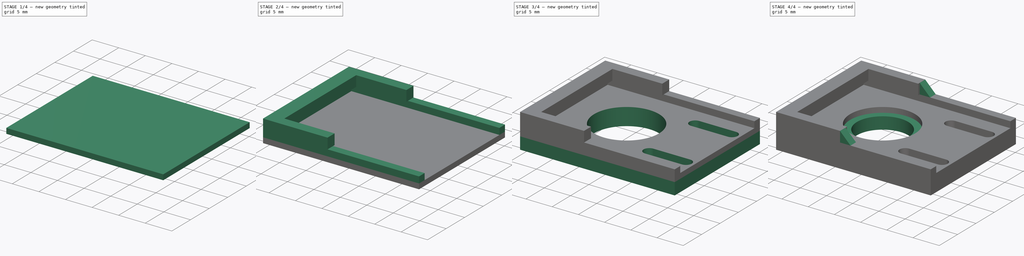
[diagram: build sequence overview — one tinted view per stage of 4, left to right]
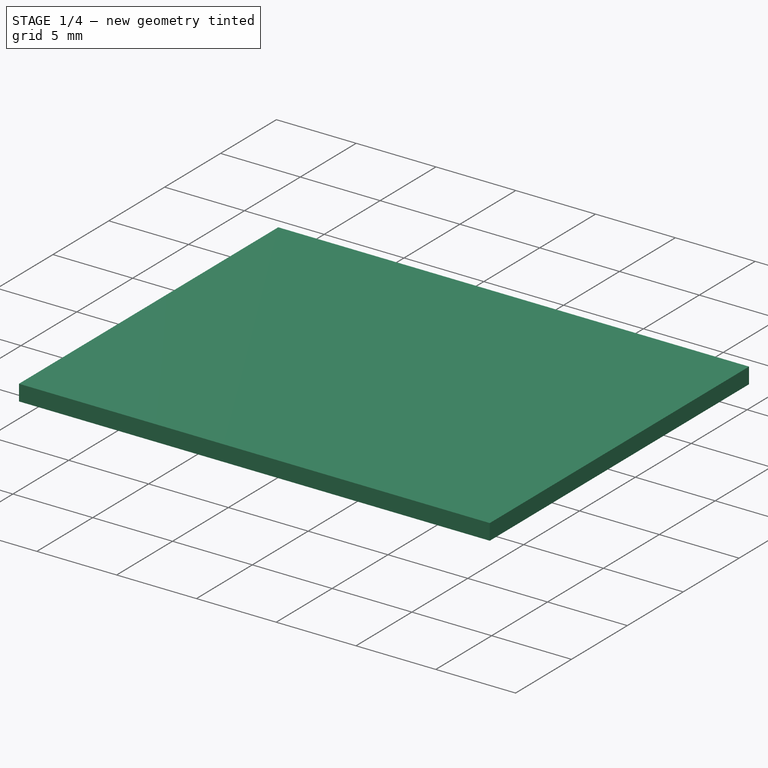
[diagram: stage 1 of 4 — iso view after this stage's code; geometry added in this stage tinted green]
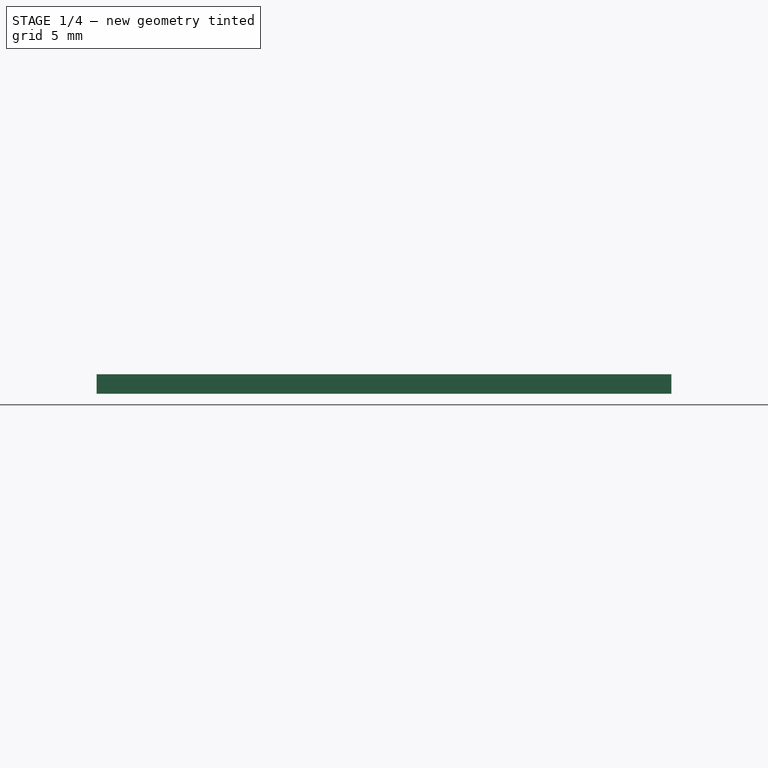
[diagram: stage 1 of 4 — front view after this stage's code; geometry added in this stage tinted green]
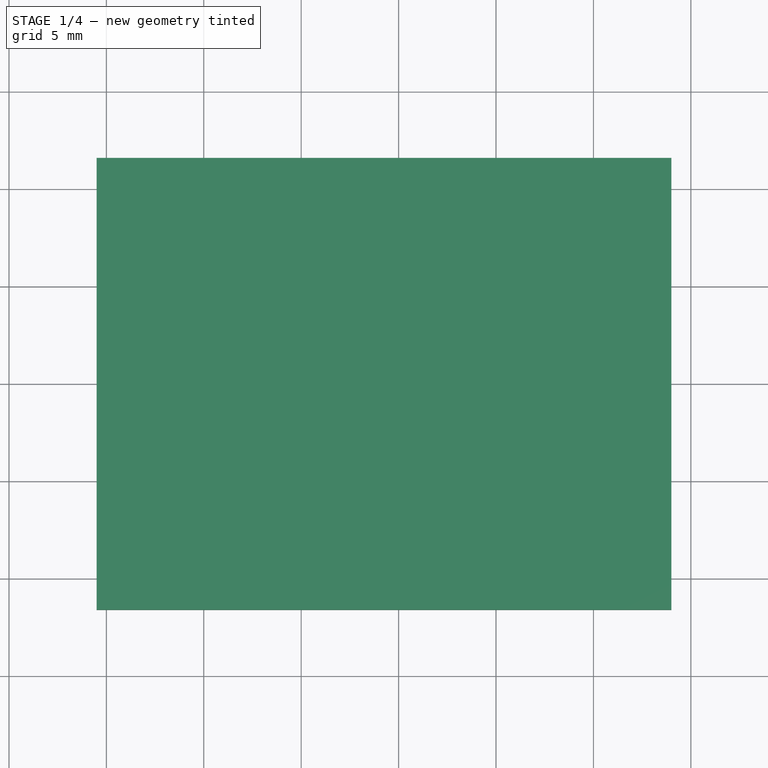
[diagram: stage 1 of 4 — top view after this stage's code; geometry added in this stage tinted green]
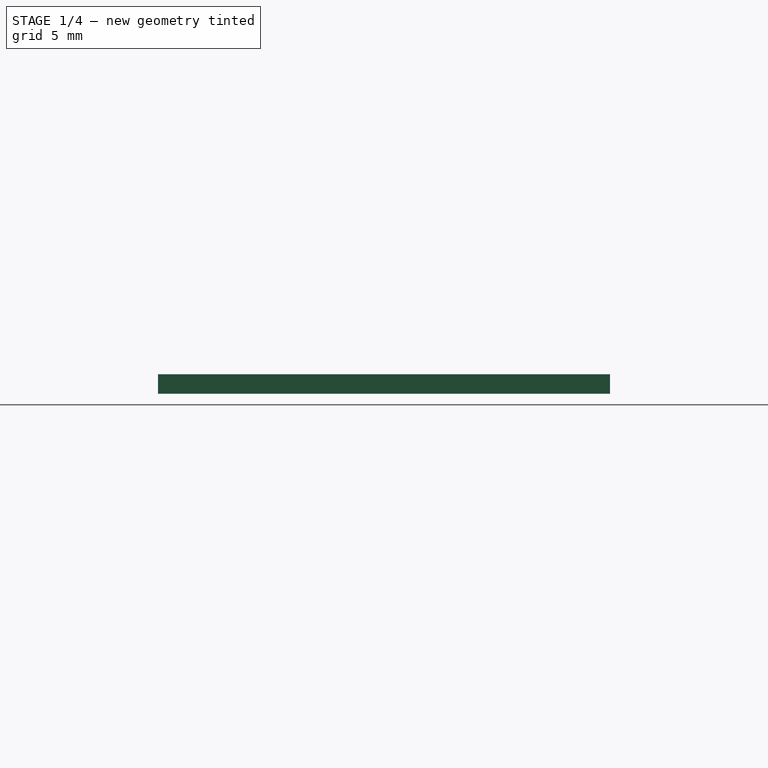
[diagram: stage 1 of 4 — right view after this stage's code; geometry added in this stage tinted green]
FCSTD DOCUMENT  (FreeCAD 0.20R29603 (Git))
Label: case-lamp-base
License: All rights reserved
LicenseURL: http://en.wikipedia.org/wiki/All_rights_reserved
objects: Sketcher::SketchObject×6, PartDesign::Pad×6, PartDesign::Pocket×2, PartDesign::Chamfer×1, PartDesign::Body×1
note: 25 computed .brp shape members not serialized (recipe doc carries the construction recipe); baked Part::Feature solids carry a one-line shape summary decoded from their .brp

FEATURE [Sketcher::SketchObject] Sketch
  FullyConstrained = true
  MapMode = 5
  Support = -> [XY_Plane]
  sketch-geometry (10):
    g0: LineSegment StartX=-14 StartY=10.1 StartZ=0 EndX=14 EndY=10.1 EndZ=0
    g1: LineSegment StartX=14 StartY=10.1 StartZ=0 EndX=14 EndY=-10.1 EndZ=0
    g2: LineSegment StartX=14 StartY=-10.1 StartZ=0 EndX=-14 EndY=-10.1 EndZ=0
    g3: LineSegment StartX=-14 StartY=-10.1 StartZ=0 EndX=-14 EndY=10.1 EndZ=0
    g4: Circle CenterX=-3.5 CenterY=0 CenterZ=0 NormalX=0 NormalY=0 NormalZ=1 AngleXU=0 Radius=9.5
    g5: LineSegment StartX=-3.5 StartY=9.5 StartZ=0 EndX=7.5 EndY=9.5 EndZ=0
    g6: Circle CenterX=7.5 CenterY=6 CenterZ=0 NormalX=0 NormalY=0 NormalZ=1 AngleXU=0 Radius=3.5
    g7: LineSegment StartX=7.5 StartY=6 StartZ=0 EndX=-3.5 EndY=6 EndZ=0
    g8: GeomPoint X=-13 Y=0 Z=0
    g9: GeomPoint X=-14 Y=0 Z=0
  constraints (28):
    c: Coincident(g0,g1)
    c: Coincident(g1,g2)
    c: Coincident(g2,g3)
    c: Coincident(g3,g0)
    c: Horizontal(g2)
    c: Vertical(g1)
    c: Symmetric(g0,g0,g-2)
    c: Symmetric(g0,g2,g-1)
    c: DistanceY(g3,g3) = 20.2
    c: DistanceX(g2,g2) = 28
    c: PointOnObject(g4,g-1)
    c: Diameter(g4) = 19
    c: Horizontal(g5)
    c: Tangent(g5,g4) = 1.5708
    c: Tangent(g6,g5)
    c: Vertical(g6,g5)
    c: Coincident(g7,g6)
    c: Horizontal(g7)
    c: Vertical(g7,g4)
    c: DistanceX(g7,g7) = 11
    c: Diameter(g6) = 7
    c: PointOnObject(g8,g-1)
    c: PointOnObject(g8,g4)
    c: PointOnObject(g9,g3)
    c: PointOnObject(g9,g-1)
    c: DistanceX(g9,g8) = 1
    c: DistanceX(g0,g5) = 10.5
    c: DistanceY(g5,g0) = 0.6
FEATURE [PartDesign::Pad] Pad
  Direction = (0,0,1)
  Length = 1
  Length2 = 10
  Profile = -> Sketch
  ReferenceAxis = -> Sketch [N_Axis]
  Type = 0
FEATURE [Sketcher::SketchObject] Sketch001
  ExternalGeometry = -> [Pad]
  FullyConstrained = true
  MapMode = 5
  Placement = pos=(0,0,1) rot=(0,0,1;0rad)
  Support = -> [Pad]
  sketch-geometry (12):
    g0: Circle CenterX=-3.5 CenterY=0 CenterZ=0 NormalX=0 NormalY=0 NormalZ=1 AngleXU=0 Radius=9.5
    g1: Circle CenterX=7.5 CenterY=6 CenterZ=0 NormalX=0 NormalY=0 NormalZ=1 AngleXU=0 Radius=3.5
    g2: LineSegment StartX=-3.5 StartY=9.5 StartZ=0 EndX=7.5 EndY=9.5 EndZ=0
    g3: GeomPoint X=-13 Y=0 Z=0
    g4: LineSegment StartX=14 StartY=10.1 StartZ=0 EndX=14 EndY=11.6 EndZ=0
    g5: LineSegment StartX=14 StartY=11.6 StartZ=0 EndX=-15.5 EndY=11.6 EndZ=0
    g6: LineSegment StartX=-15.5 StartY=11.6 StartZ=0 EndX=-15.5 EndY=-11.6 EndZ=0
    g7: LineSegment StartX=-15.5 StartY=-11.6 StartZ=0 EndX=14 EndY=-11.6 EndZ=0
    g8: LineSegment StartX=14 StartY=-11.6 StartZ=0 EndX=14 EndY=-10.1 EndZ=0
    g9: LineSegment StartX=14 StartY=-10.1 StartZ=0 EndX=-14 EndY=-10.1 EndZ=0
    g10: LineSegment StartX=-14 StartY=-10.1 StartZ=0 EndX=-14 EndY=10.1 EndZ=0
    g11: LineSegment StartX=-14 StartY=10.1 StartZ=0 EndX=14 EndY=10.1 EndZ=0
  constraints (37):
    c: PointOnObject(g0,g-1)
    c: Horizontal(g2)
    c: Tangent(g2,g1)
    c: Tangent(g2,g0)
    c: Vertical(g0,g2)
    c: Vertical(g1,g2)
    c: DistanceX(g2,g2) = 11
    c: Diameter(g1) = 7
    c: Diameter(g0) = 19
    c: PointOnObject(g3,g0)
    c: PointOnObject(g3,g-1)
    c: DistanceX(g-3,g3) = 1
    c: DistanceY(g2,g-3) = 0.6
    c: Vertical(g4)
    c: Coincident(g4,g5)
    c: Horizontal(g5)
    c: Coincident(g5,g6)
    c: Vertical(g6)
    c: Coincident(g6,g7)
    c: Horizontal(g7)
    c: Coincident(g7,g8)
    c: Vertical(g8)
    c: Coincident(g8,g9)
    c: Horizontal(g9)
    c: Coincident(g9,g10)
    c: Vertical(g10)
    c: Coincident(g10,g11)
    c: Coincident(g11,g4)
    c: Horizontal(g11)
    c: PointOnObject(g-3,g9)
    c: PointOnObject(g-3,g10)
    c: PointOnObject(g-3,g11)
    c: Equal(g7,g5)
    c: Equal(g4,g8)
    c: PointOnObject(g-4,g8)
    c: DistanceY(g4,g4) = 1.5
    c: DistanceX(g5,g10) = 1.5
FEATURE [PartDesign::Pad] Pad001
  BaseFeature = -> Pad
  Direction = (0,0,1)
  Length = 10
  Length2 = 10
  Profile = -> Sketch001
  ReferenceAxis = -> Sketch001 [N_Axis]
  Type = 3
  UpToFace = -> Pad [Face5]
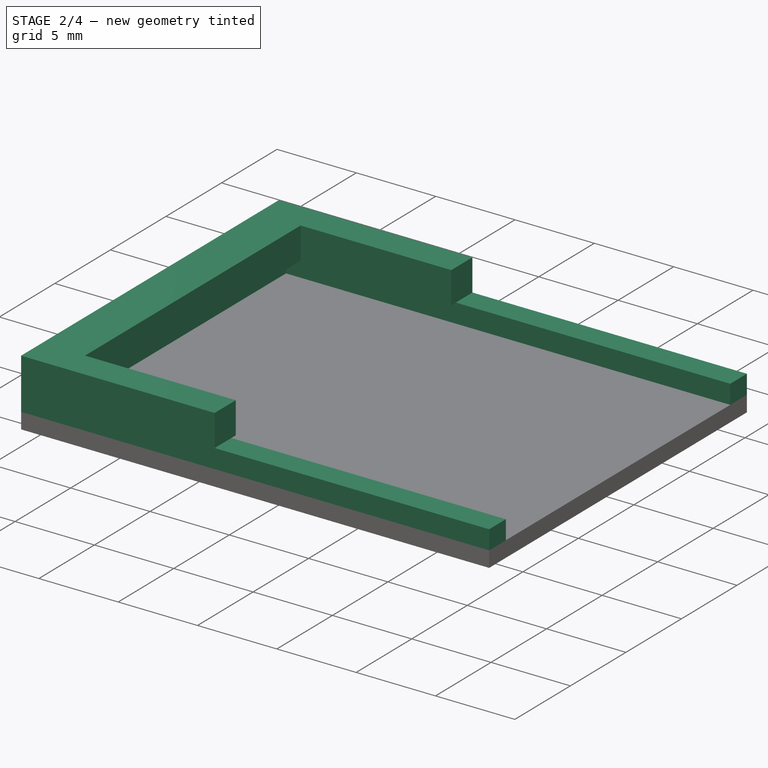
[diagram: stage 2 of 4 — iso view after this stage's code; geometry added in this stage tinted green]
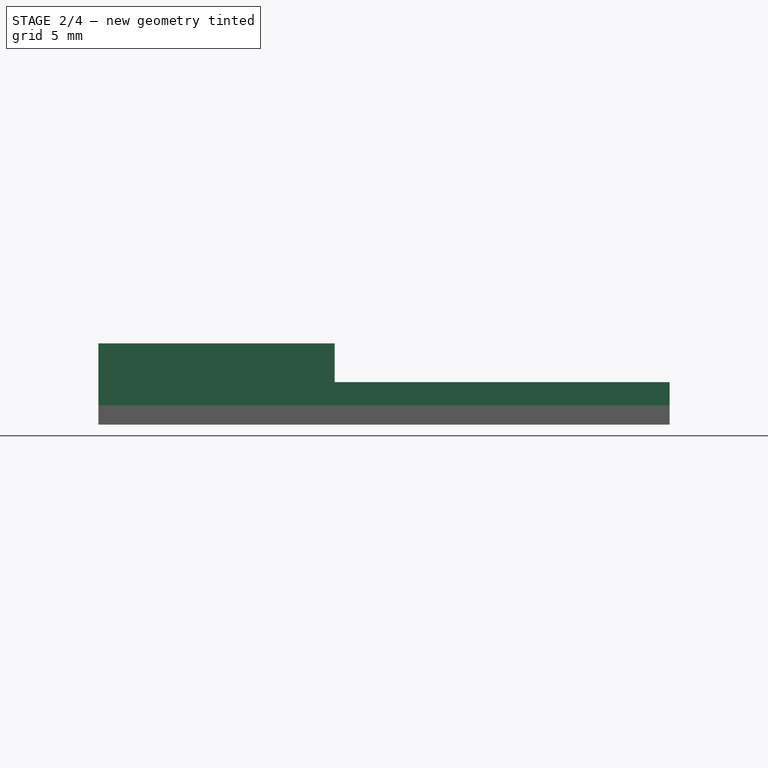
[diagram: stage 2 of 4 — front view after this stage's code; geometry added in this stage tinted green]
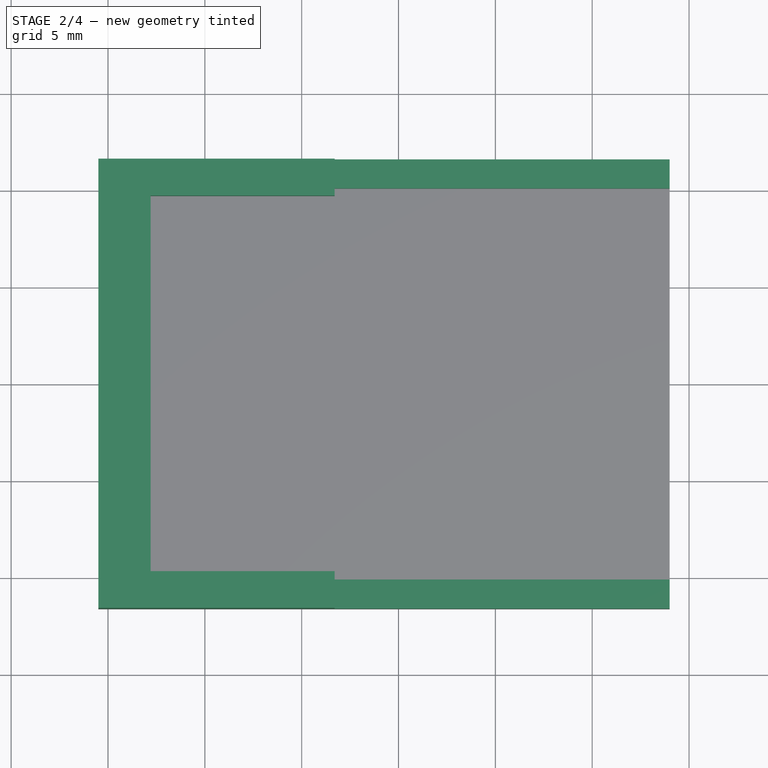
[diagram: stage 2 of 4 — top view after this stage's code; geometry added in this stage tinted green]
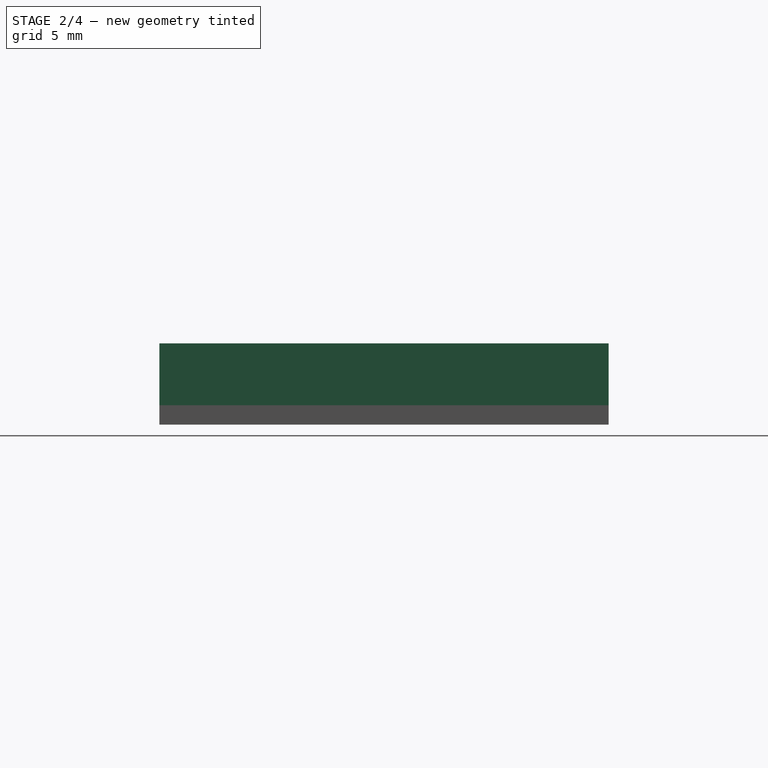
[diagram: stage 2 of 4 — right view after this stage's code; geometry added in this stage tinted green]
FEATURE [PartDesign::Pad] Pad002
  BaseFeature = -> Pad001
  Direction = (0,0,1)
  Length = 1.2
  Length2 = 10
  Profile = -> Pad001 [Face6]
  Type = 0
FEATURE [Sketcher::SketchObject] Sketch002
  ExternalGeometry = -> [Pad002]
  FullyConstrained = true
  MapMode = 5
  Placement = pos=(0,0,2.2) rot=(0,0,1;0rad)
  Support = -> [Pad002]
  sketch-geometry (11):
    g0: Circle CenterX=-3.3 CenterY=0 CenterZ=0 NormalX=0 NormalY=0 NormalZ=1 AngleXU=0 Radius=9.5
    g1: Circle CenterX=7.7 CenterY=6 CenterZ=0 NormalX=0 NormalY=0 NormalZ=1 AngleXU=0 Radius=3.5
    g2: LineSegment StartX=-3.3 StartY=9.5 StartZ=0 EndX=7.7 EndY=9.5 EndZ=0
    g3: LineSegment StartX=-3.3 StartY=-9.7 StartZ=0 EndX=-12.8 EndY=-9.7 EndZ=0
    g4: LineSegment StartX=-12.8 StartY=-9.7 StartZ=0 EndX=-12.8 EndY=9.7 EndZ=0
    g5: LineSegment StartX=-12.8 StartY=9.7 StartZ=0 EndX=-3.3 EndY=9.7 EndZ=0
    g6: LineSegment StartX=-3.3 StartY=9.7 StartZ=0 EndX=-3.3 EndY=11.6 EndZ=0
    g7: LineSegment StartX=-3.3 StartY=11.6 StartZ=0 EndX=-15.5 EndY=11.6 EndZ=0
    g8: LineSegment StartX=-15.5 StartY=11.6 StartZ=0 EndX=-15.5 EndY=-11.6 EndZ=0
    g9: LineSegment StartX=-15.5 StartY=-11.6 StartZ=0 EndX=-3.3 EndY=-11.6 EndZ=0
    g10: LineSegment StartX=-3.3 StartY=-11.6 StartZ=0 EndX=-3.3 EndY=-9.7 EndZ=0
  constraints (34):
    c: PointOnObject(g0,g-1)
    c: Horizontal(g2)
    c: Vertical(g2,g0)
    c: Vertical(g1,g2)
    c: Tangent(g2,g0)
    c: Tangent(g1,g2)
    c: Diameter(g1) = 7
    c: DistanceX(g2,g2) = 11
    c: Diameter(g0) = 19
    c: Horizontal(g3)
    c: Coincident(g3,g4)
    c: Vertical(g4)
    c: Coincident(g4,g5)
    c: Horizontal(g5)
    c: Coincident(g5,g6)
    c: Vertical(g6)
    c: Coincident(g6,g7)
    c: Horizontal(g7)
    c: Coincident(g7,g8)
    c: Vertical(g8)
    c: Coincident(g8,g9)
    c: Horizontal(g9)
    c: Coincident(g9,g10)
    c: Coincident(g10,g3)
    c: Vertical(g10)
    c: Equal(g10,g6)
    c: Equal(g7,g9)
    c: Vertical(g2,g5)
    c: Tangent(g4,g0)
    c: DistanceY(g2,g5) = 0.2
    c: DistanceX(g-3,g4) = 1.2
    c: PointOnObject(g-4,g8)
    c: PointOnObject(g-4,g7)
    c: PointOnObject(g-4,g9)
FEATURE [PartDesign::Pad] Pad003
  BaseFeature = -> Pad002
  Direction = (0,0,1)
  Length = 2
  Length2 = 10
  Profile = -> Sketch002
  ReferenceAxis = -> Sketch002 [N_Axis]
  Type = 0
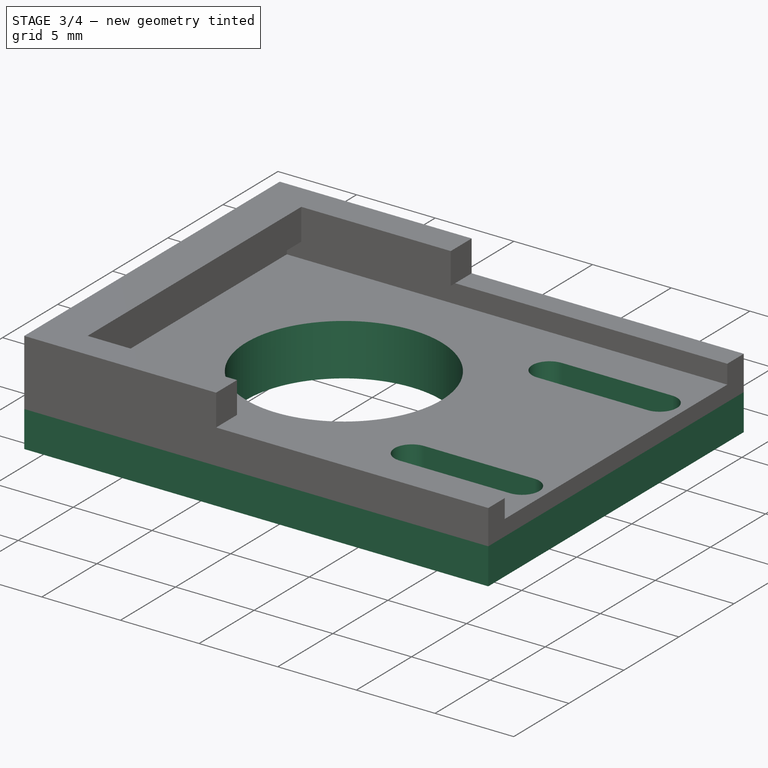
[diagram: stage 3 of 4 — iso view after this stage's code; geometry added in this stage tinted green]
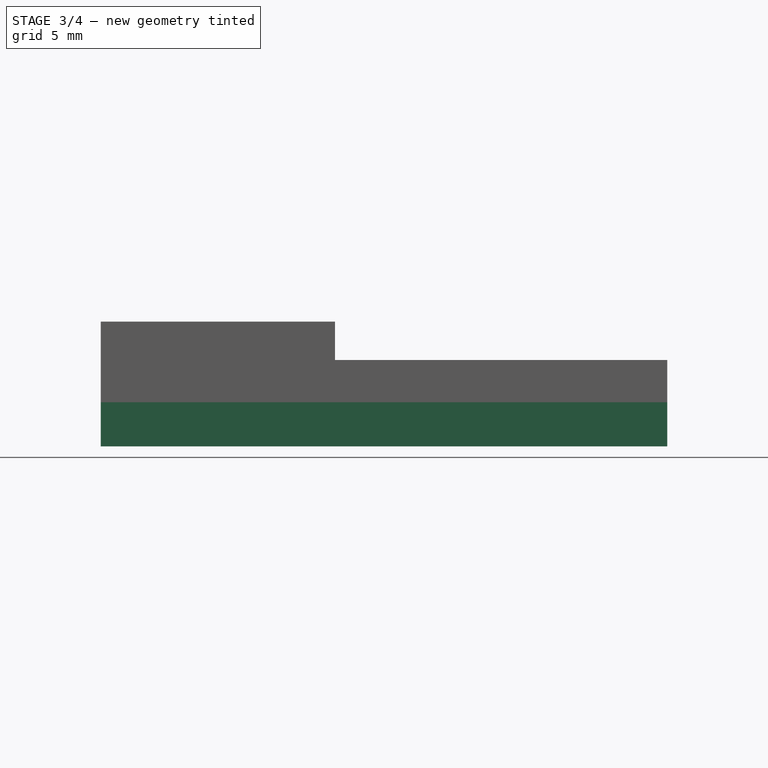
[diagram: stage 3 of 4 — front view after this stage's code; geometry added in this stage tinted green]
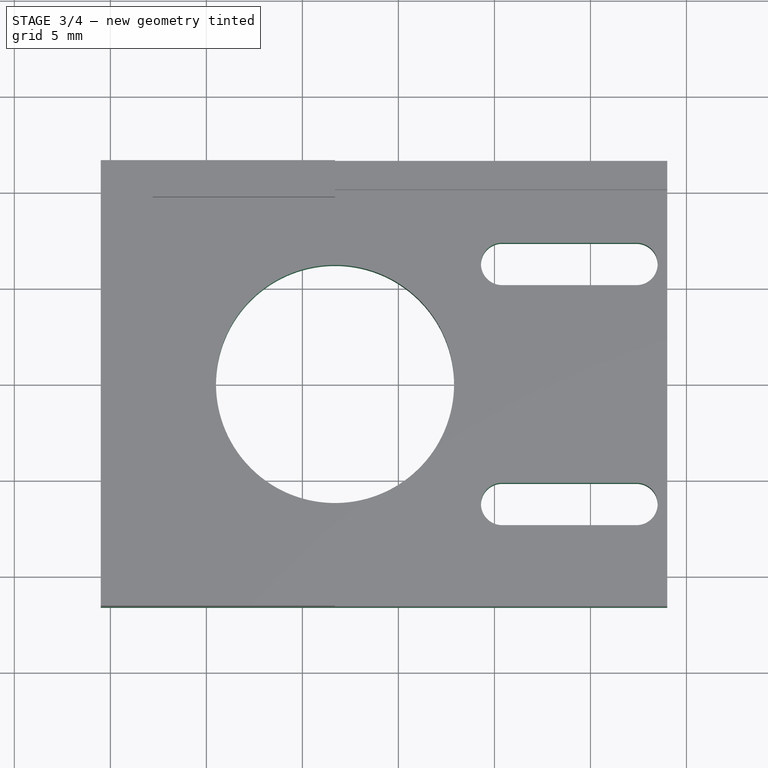
[diagram: stage 3 of 4 — top view after this stage's code; geometry added in this stage tinted green]
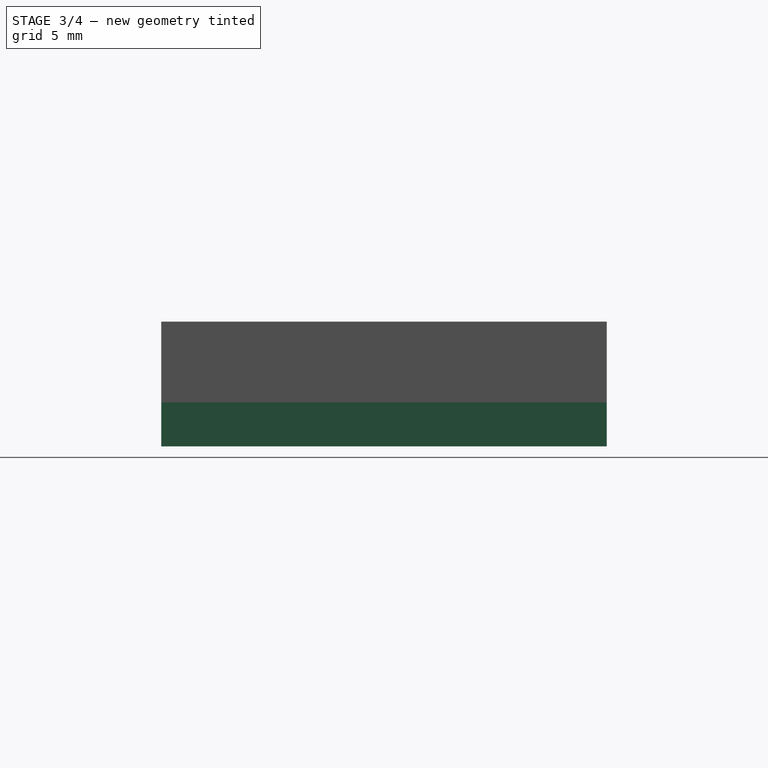
[diagram: stage 3 of 4 — right view after this stage's code; geometry added in this stage tinted green]
FEATURE [Sketcher::SketchObject] Sketch003
  ExternalGeometry = -> [Pad003]
  FullyConstrained = true
  MapMode = 5
  Placement = pos=(0,0,1) rot=(0,0,1;0rad)
  Support = -> [Pad003]
  sketch-geometry (12):
    g0: Circle CenterX=12.4 CenterY=6.25 CenterZ=0 NormalX=0 NormalY=0 NormalZ=1 AngleXU=0 Radius=1.1
    g1: Circle CenterX=12.4 CenterY=-6.25 CenterZ=0 NormalX=0 NormalY=0 NormalZ=1 AngleXU=0 Radius=1.1
    g2: LineSegment StartX=12.4 StartY=-6.25 StartZ=0 EndX=12.4 EndY=6.25 EndZ=0
    g3: GeomPoint X=13.5 Y=6.25 Z=0
    g4: ArcOfCircle CenterX=12.4 CenterY=6.25 CenterZ=0 NormalX=0 NormalY=0 NormalZ=1 AngleXU=0 Radius=1.1 StartAngle=4.71239 EndAngle=7.85398
    g5: ArcOfCircle CenterX=5.4 CenterY=6.25 CenterZ=0 NormalX=0 NormalY=0 NormalZ=1 AngleXU=0 Radius=1.1 StartAngle=1.5708 EndAngle=4.71239
    g6: LineSegment StartX=12.4 StartY=7.35 StartZ=0 EndX=5.4 EndY=7.35 EndZ=0
    g7: LineSegment StartX=5.4 StartY=5.15 StartZ=0 EndX=12.4 EndY=5.15 EndZ=0
    g8: ArcOfCircle CenterX=12.4 CenterY=-6.25 CenterZ=0 NormalX=0 NormalY=0 NormalZ=1 AngleXU=0 Radius=1.1 StartAngle=4.71239 EndAngle=7.85398
    g9: ArcOfCircle CenterX=5.4 CenterY=-6.25 CenterZ=0 NormalX=0 NormalY=0 NormalZ=1 AngleXU=0 Radius=1.1 StartAngle=1.5708 EndAngle=4.71239
    g10: LineSegment StartX=12.4 StartY=-5.15 StartZ=0 EndX=5.4 EndY=-5.15 EndZ=0
    g11: LineSegment StartX=5.4 StartY=-7.35 StartZ=0 EndX=12.4 EndY=-7.35 EndZ=0
  constraints (27):
    c: Coincident(g2,g0)
    c: Coincident(g2,g1)
    c: Symmetric(g0,g1,g-1)
    c: Diameter(g0) = 2.2
    c: Equal(g1,g0)
    c: DistanceY(g2,g2) = 12.5
    c: PointOnObject(g3,g0)
    c: Horizontal(g3,g0)
    c: DistanceX(g3,g-3) = 0.5
    c: Tangent(g4,g6) = -1.5708
    c: Tangent(g6,g5) = -1.5708
    c: Tangent(g5,g7) = -1.5708
    c: Tangent(g7,g4) = -1.5708
    c: Equal(g4,g5)
    c: Coincident(g4,g0)
    c: Tangent(g8,g10) = -1.5708
    c: Tangent(g10,g9) = -1.5708
    c: Tangent(g9,g11) = -1.5708
    c: Tangent(g11,g8) = -1.5708
    c: Equal(g8,g9)
    c: Coincident(g8,g1)
    c: Equal(g8,g1)
    c: Equal(g1,g4)
    c: Horizontal(g7)
    c: Horizontal(g11)
    c: Vertical(g9,g5)
    c: DistanceX(g9,g8) = 7
FEATURE [PartDesign::Pocket] Pocket
  BaseFeature = -> Pad003
  Direction = (0,0,-1)
  Length = 5
  Length2 = 5
  Profile = -> Sketch003
  ReferenceAxis = -> Sketch003 [N_Axis]
  Type = 1
FEATURE [Sketcher::SketchObject] Sketch004
  ExternalGeometry = -> [Pocket]
  FullyConstrained = true
  MapMode = 5
  Placement = pos=(0,0,1) rot=(0,0,1;0rad)
  Support = -> [Pocket]
  sketch-geometry (2):
    g0: Circle CenterX=-3.3 CenterY=0 CenterZ=0 NormalX=0 NormalY=0 NormalZ=1 AngleXU=0 Radius=6.2
    g1: Circle CenterX=-3.3 CenterY=0 CenterZ=0 NormalX=0 NormalY=0 NormalZ=1 AngleXU=0 Radius=9.5
  constraints (5):
    c: PointOnObject(g0,g-1)
    c: Coincident(g1,g0)
    c: Diameter(g1) = 19
    c: Tangent(g1,g-3)
    c: Diameter(g0) = 12.4
FEATURE [PartDesign::Pocket] Pocket001
  BaseFeature = -> Pocket
  Direction = (0,0,-1)
  Length = 1
  Length2 = 5
  Profile = -> Sketch004
  ReferenceAxis = -> Sketch004 [N_Axis]
  Type = 0
FEATURE [PartDesign::Pad] Pad004
  BaseFeature = -> Pocket001
  Direction = (0,0,-1)
  Length = 2.3
  Length2 = 10
  Profile = -> Pocket001 [Face4,Face8]
  Type = 0
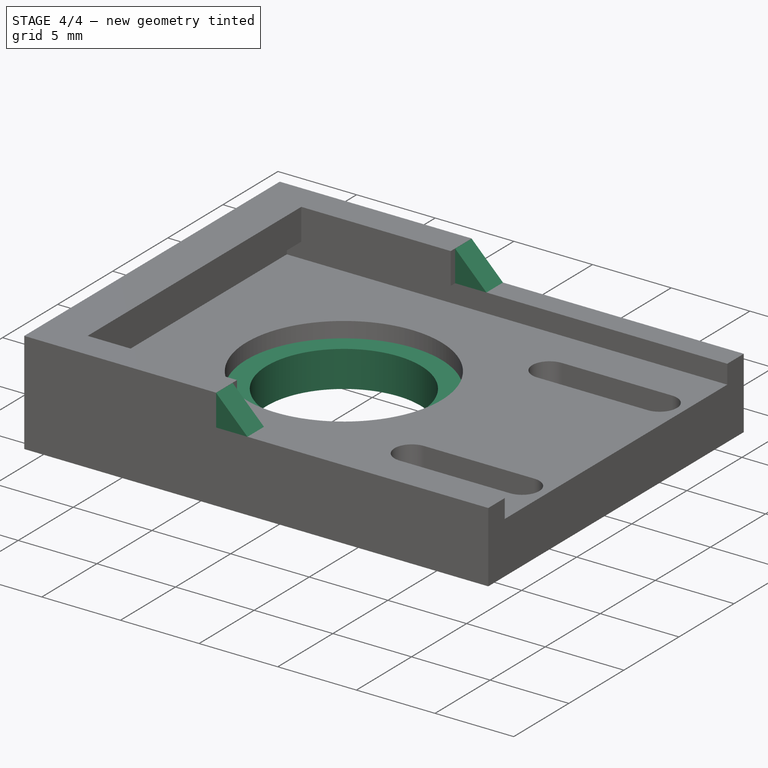
[diagram: stage 4 of 4 — iso view after this stage's code; geometry added in this stage tinted green]
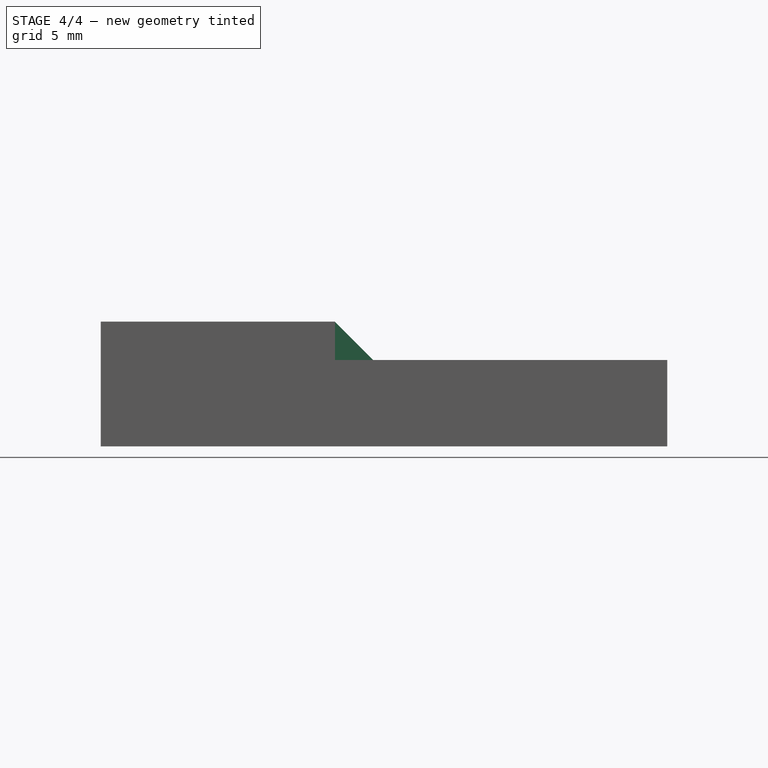
[diagram: stage 4 of 4 — front view after this stage's code; geometry added in this stage tinted green]
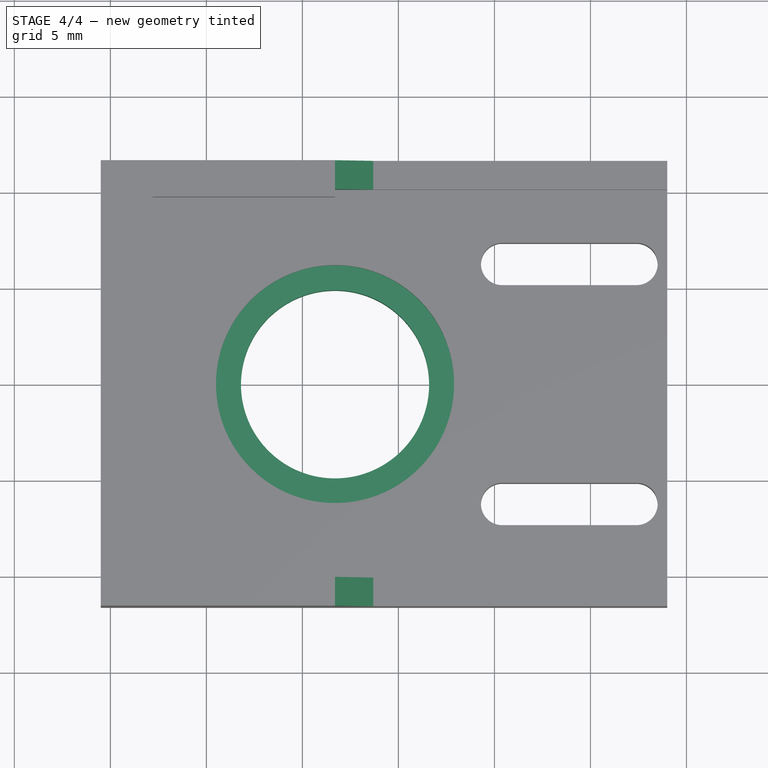
[diagram: stage 4 of 4 — top view after this stage's code; geometry added in this stage tinted green]
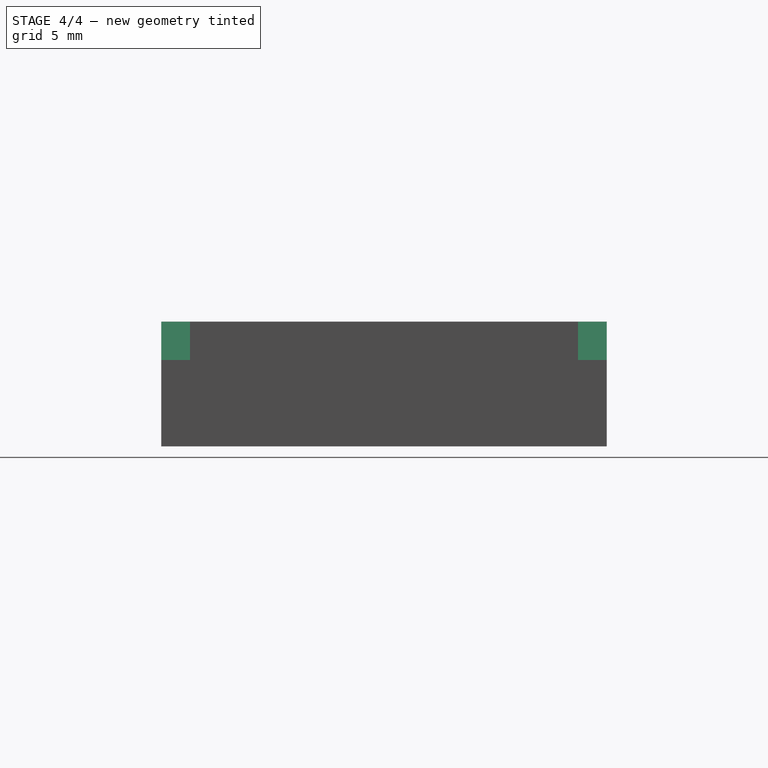
[diagram: stage 4 of 4 — right view after this stage's code; geometry added in this stage tinted green]
FEATURE [Sketcher::SketchObject] Sketch005
  ExternalGeometry = -> [Pad004]
  FullyConstrained = true
  MapMode = 5
  Placement = pos=(0,0,-2.3) rot=(1,0,0;3.14159rad)
  Support = -> [Pad004]
  sketch-geometry (2):
    g0: Circle CenterX=-3.3 CenterY=0 CenterZ=0 NormalX=0 NormalY=0 NormalZ=1 AngleXU=0 Radius=4.9
    g1: Circle CenterX=-3.3 CenterY=0 CenterZ=0 NormalX=0 NormalY=0 NormalZ=1 AngleXU=0 Radius=6.2
  constraints (4):
    c: Coincident(g0,g-3)
    c: Diameter(g0) = 9.8
    c: Coincident(g1,g0)
    c: Equal(g1,g-3)
FEATURE [PartDesign::Pad] Pad005
  BaseFeature = -> Pad004
  Direction = (0,0,-1)
  Length = 2.3
  Length2 = 10
  Profile = -> Sketch005
  ReferenceAxis = -> Sketch005 [N_Axis]
  Reversed = true
  Type = 0
FEATURE [PartDesign::Chamfer] Chamfer
  Angle = 45
  Base = -> Pad005 [Edge92,Edge82]
  BaseFeature = -> Pad005
  ChamferType = 0
  FlipDirection = false
  Size = 1.99
  Size2 = 1
  SupportTransform = false
  UseAllEdges = false
FEATURE [PartDesign::Body] Body
  Group = -> [Sketch,Pad,Sketch001,Pad001,Pad002,Sketch002,Pad003,Sketch003,Pocket,Sketch004,Pocket001,Pad004,Sketch005,Pad005,Chamfer]
  Origin = -> Origin
  Tip = -> Chamfer
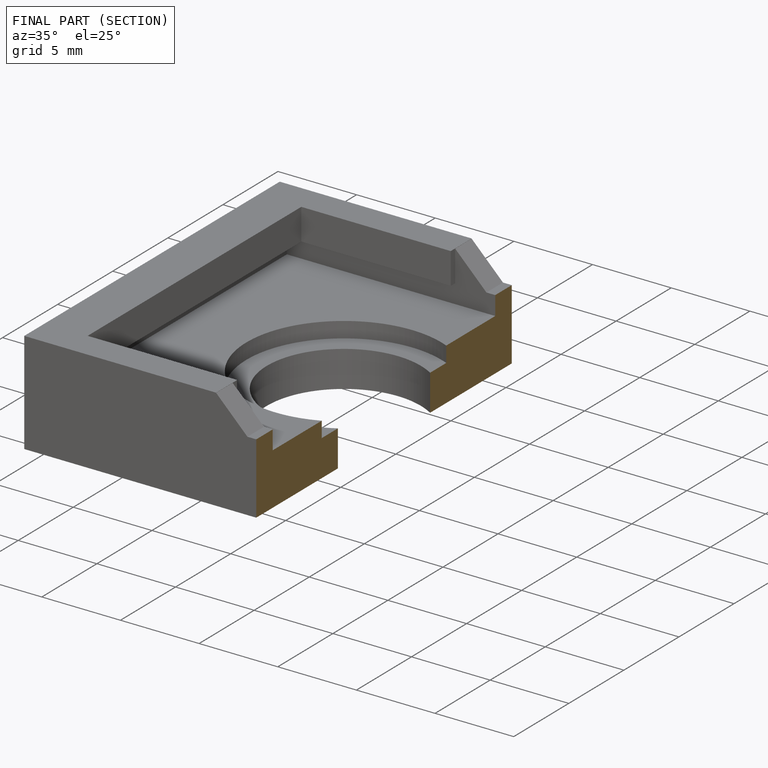
[diagram: finished part — half-section view (interior)]
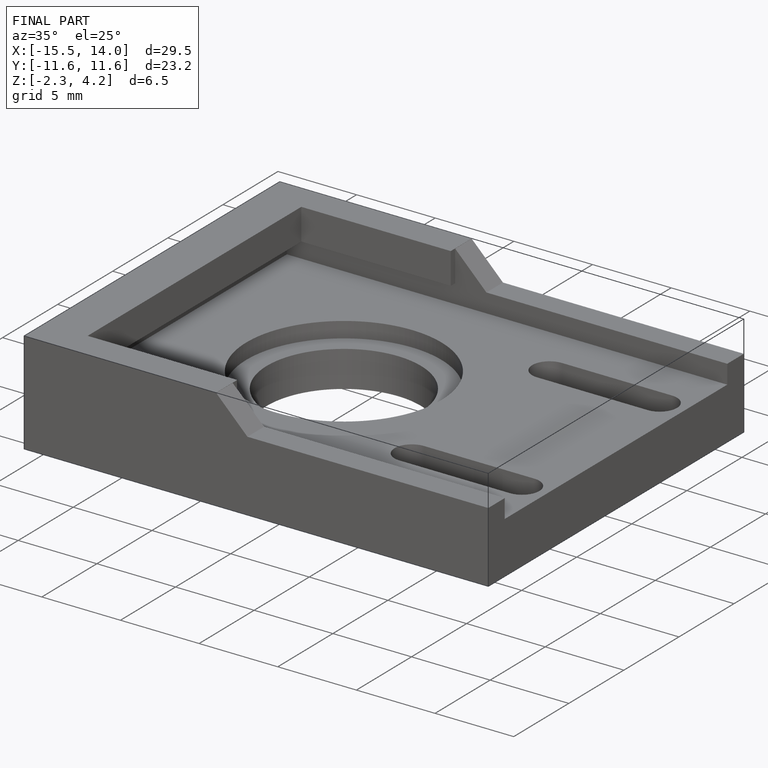
[diagram: finished part — iso view with bounding-box wireframe]
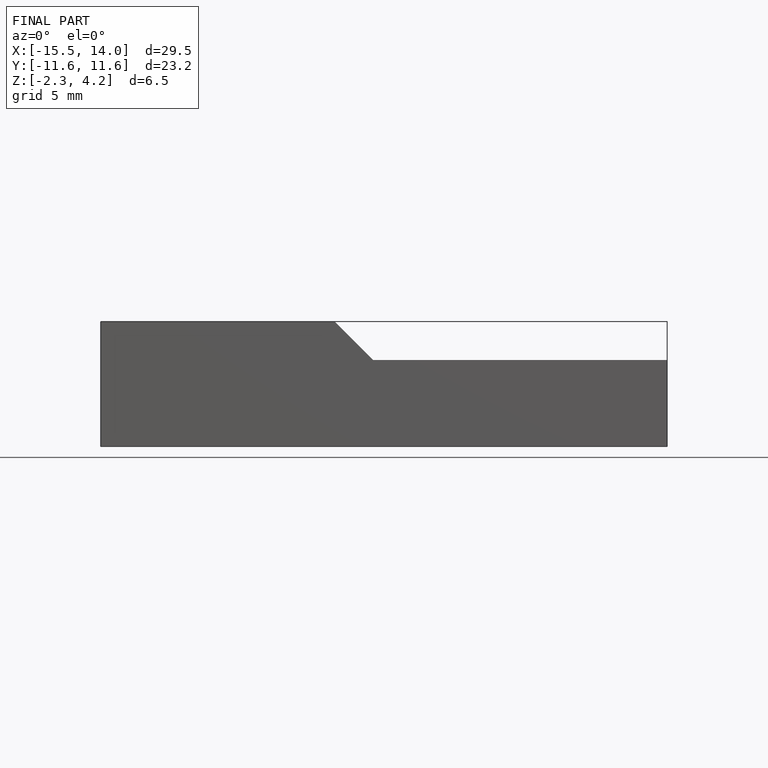
[diagram: finished part — front view with bounding-box wireframe]
